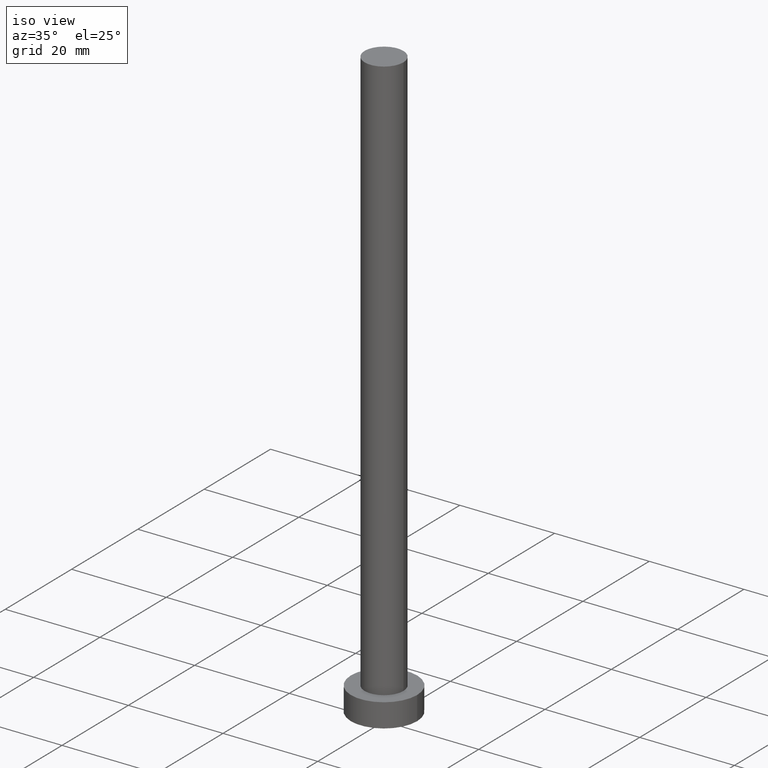
[diagram: clean part render]
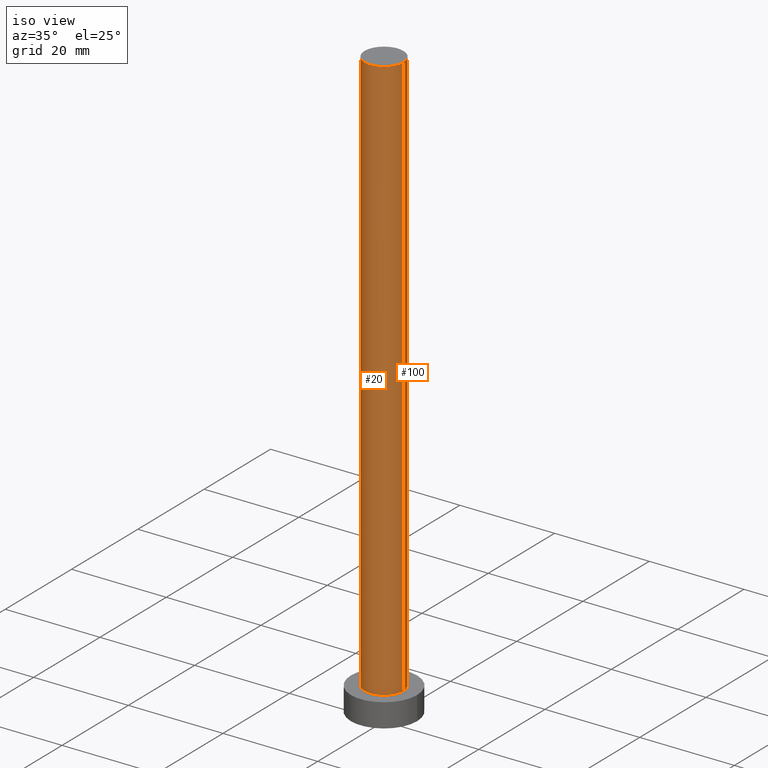
[diagram: same view with one multi-face feature highlighted, each face labeled with its STEP entity id]
A machine part, iso view. The highlighted faces form ONE feature: a constant-radius fillet chain: 2 tangent blend faces with common blend radius 4.1 mm. The faces share edges in the B-rep.
Their STEP definitions:
[1] entity #20 (Cylinder):
#3 = EDGE_CURVE ( 'NONE', #215, #198, #219, .T. ) ;
#4 = ORIENTED_EDGE ( 'NONE', *, *, #154, .T. ) ;
#5 = ORIENTED_EDGE ( 'NONE', *, *, #237, .F. ) ;
#14 = CARTESIAN_POINT ( 'NONE',  ( 4.099999999999999645, 5.021051876504147385E-16, 125.0000000000000000 ) ) ;
#18 = CIRCLE ( 'NONE', #209, 4.099999999999999645 ) ;
#20 = ADVANCED_FACE ( 'NONE', ( #200 ), #183, .T. ) ;
#21 = DIRECTION ( 'NONE',  ( -0.000000000000000000, -0.000000000000000000, -1.000000000000000000 ) ) ;
#26 = AXIS2_PLACEMENT_3D ( 'NONE', #238, #21, #234 ) ;
#29 = DIRECTION ( 'NONE',  ( 0.000000000000000000, 0.000000000000000000, 1.000000000000000000 ) ) ;
#35 = VECTOR ( 'NONE', #225, 1000.000000000000000 ) ;
#36 = ORIENTED_EDGE ( 'NONE', *, *, #3, .F. ) ;
#40 = DIRECTION ( 'NONE',  ( -0.000000000000000000, -0.000000000000000000, -1.000000000000000000 ) ) ;
#55 = LINE ( 'NONE', #149, #35 ) ;
#58 = DIRECTION ( 'NONE',  ( 1.000000000000000000, 0.000000000000000000, 0.000000000000000000 ) ) ;
#62 = VECTOR ( 'NONE', #40, 1000.000000000000000 ) ;
#63 = CARTESIAN_POINT ( 'NONE',  ( 4.099999999999999645, 5.021051876504147385E-16, 5.000000000000000000 ) ) ;
#77 = CARTESIAN_POINT ( 'NONE',  ( -4.099999999999999645, 0.000000000000000000, 5.000000000000000000 ) ) ;
#116 = VERTEX_POINT ( 'NONE', #77 ) ;
#131 = CARTESIAN_POINT ( 'NONE',  ( 0.000000000000000000, 0.000000000000000000, 125.0000000000000000 ) ) ;
#133 = DIRECTION ( 'NONE',  ( 1.000000000000000000, 0.000000000000000000, 0.000000000000000000 ) ) ;
#134 = CARTESIAN_POINT ( 'NONE',  ( 4.099999999999999645, 5.021051876504147385E-16, 125.0000000000000000 ) ) ;
#137 = VERTEX_POINT ( 'NONE', #186 ) ;
#140 = AXIS2_PLACEMENT_3D ( 'NONE', #131, #176, #133 ) ;
#149 = CARTESIAN_POINT ( 'NONE',  ( -4.099999999999999645, 0.000000000000000000, 125.0000000000000000 ) ) ;
#152 = EDGE_CURVE ( 'NONE', #116, #198, #18, .T. ) ;
#154 = EDGE_CURVE ( 'NONE', #137, #116, #55, .T. ) ;
#157 = EDGE_LOOP ( 'NONE', ( #36, #5, #4, #164 ) ) ;
#159 = CIRCLE ( 'NONE', #140, 4.099999999999999645 ) ;
#164 = ORIENTED_EDGE ( 'NONE', *, *, #152, .T. ) ;
#176 = DIRECTION ( 'NONE',  ( 0.000000000000000000, 0.000000000000000000, 1.000000000000000000 ) ) ;
#183 = CYLINDRICAL_SURFACE ( 'NONE', #26, 4.099999999999999645 ) ;
#186 = CARTESIAN_POINT ( 'NONE',  ( -4.099999999999999645, 0.000000000000000000, 125.0000000000000000 ) ) ;
#198 = VERTEX_POINT ( 'NONE', #63 ) ;
#200 = FACE_OUTER_BOUND ( 'NONE', #157, .T. ) ;
#209 = AXIS2_PLACEMENT_3D ( 'NONE', #222, #29, #58 ) ;
#215 = VERTEX_POINT ( 'NONE', #14 ) ;
#219 = LINE ( 'NONE', #134, #62 ) ;
#222 = CARTESIAN_POINT ( 'NONE',  ( 0.000000000000000000, 0.000000000000000000, 5.000000000000000000 ) ) ;
#225 = DIRECTION ( 'NONE',  ( -0.000000000000000000, -0.000000000000000000, -1.000000000000000000 ) ) ;
#234 = DIRECTION ( 'NONE',  ( -1.000000000000000000, 0.000000000000000000, 0.000000000000000000 ) ) ;
#237 = EDGE_CURVE ( 'NONE', #137, #215, #159, .T. ) ;
#238 = CARTESIAN_POINT ( 'NONE',  ( 0.000000000000000000, 0.000000000000000000, 125.0000000000000000 ) ) ;
[2] entity #100 (Cylinder):
#3 = EDGE_CURVE ( 'NONE', #215, #198, #219, .T. ) ;
#8 = DIRECTION ( 'NONE',  ( 1.000000000000000000, 0.000000000000000000, 0.000000000000000000 ) ) ;
#12 = AXIS2_PLACEMENT_3D ( 'NONE', #190, #28, #8 ) ;
#14 = CARTESIAN_POINT ( 'NONE',  ( 4.099999999999999645, 5.021051876504147385E-16, 125.0000000000000000 ) ) ;
#17 = CYLINDRICAL_SURFACE ( 'NONE', #93, 4.099999999999999645 ) ;
#22 = CIRCLE ( 'NONE', #142, 4.099999999999999645 ) ;
#25 = DIRECTION ( 'NONE',  ( 1.000000000000000000, 0.000000000000000000, 0.000000000000000000 ) ) ;
#28 = DIRECTION ( 'NONE',  ( 0.000000000000000000, 0.000000000000000000, 1.000000000000000000 ) ) ;
#35 = VECTOR ( 'NONE', #225, 1000.000000000000000 ) ;
#40 = DIRECTION ( 'NONE',  ( -0.000000000000000000, -0.000000000000000000, -1.000000000000000000 ) ) ;
#49 = ORIENTED_EDGE ( 'NONE', *, *, #154, .F. ) ;
#55 = LINE ( 'NONE', #149, #35 ) ;
#61 = DIRECTION ( 'NONE',  ( -1.000000000000000000, 0.000000000000000000, 0.000000000000000000 ) ) ;
#62 = VECTOR ( 'NONE', #40, 1000.000000000000000 ) ;
#63 = CARTESIAN_POINT ( 'NONE',  ( 4.099999999999999645, 5.021051876504147385E-16, 5.000000000000000000 ) ) ;
#69 = ORIENTED_EDGE ( 'NONE', *, *, #3, .T. ) ;
#71 = EDGE_CURVE ( 'NONE', #198, #116, #22, .T. ) ;
#77 = CARTESIAN_POINT ( 'NONE',  ( -4.099999999999999645, 0.000000000000000000, 5.000000000000000000 ) ) ;
#87 = DIRECTION ( 'NONE',  ( -0.000000000000000000, -0.000000000000000000, -1.000000000000000000 ) ) ;
#93 = AXIS2_PLACEMENT_3D ( 'NONE', #212, #87, #61 ) ;
#100 = ADVANCED_FACE ( 'NONE', ( #113 ), #17, .T. ) ;
#105 = ORIENTED_EDGE ( 'NONE', *, *, #71, .T. ) ;
#111 = EDGE_CURVE ( 'NONE', #215, #137, #211, .T. ) ;
#113 = FACE_OUTER_BOUND ( 'NONE', #221, .T. ) ;
#116 = VERTEX_POINT ( 'NONE', #77 ) ;
#134 = CARTESIAN_POINT ( 'NONE',  ( 4.099999999999999645, 5.021051876504147385E-16, 125.0000000000000000 ) ) ;
#137 = VERTEX_POINT ( 'NONE', #186 ) ;
#142 = AXIS2_PLACEMENT_3D ( 'NONE', #223, #203, #25 ) ;
#149 = CARTESIAN_POINT ( 'NONE',  ( -4.099999999999999645, 0.000000000000000000, 125.0000000000000000 ) ) ;
#154 = EDGE_CURVE ( 'NONE', #137, #116, #55, .T. ) ;
#158 = ORIENTED_EDGE ( 'NONE', *, *, #111, .F. ) ;
#186 = CARTESIAN_POINT ( 'NONE',  ( -4.099999999999999645, 0.000000000000000000, 125.0000000000000000 ) ) ;
#190 = CARTESIAN_POINT ( 'NONE',  ( 0.000000000000000000, 0.000000000000000000, 125.0000000000000000 ) ) ;
#198 = VERTEX_POINT ( 'NONE', #63 ) ;
#203 = DIRECTION ( 'NONE',  ( 0.000000000000000000, 0.000000000000000000, 1.000000000000000000 ) ) ;
#211 = CIRCLE ( 'NONE', #12, 4.099999999999999645 ) ;
#212 = CARTESIAN_POINT ( 'NONE',  ( 0.000000000000000000, 0.000000000000000000, 125.0000000000000000 ) ) ;
#215 = VERTEX_POINT ( 'NONE', #14 ) ;
#219 = LINE ( 'NONE', #134, #62 ) ;
#221 = EDGE_LOOP ( 'NONE', ( #158, #69, #105, #49 ) ) ;
#223 = CARTESIAN_POINT ( 'NONE',  ( 0.000000000000000000, 0.000000000000000000, 5.000000000000000000 ) ) ;
#225 = DIRECTION ( 'NONE',  ( -0.000000000000000000, -0.000000000000000000, -1.000000000000000000 ) ) ;